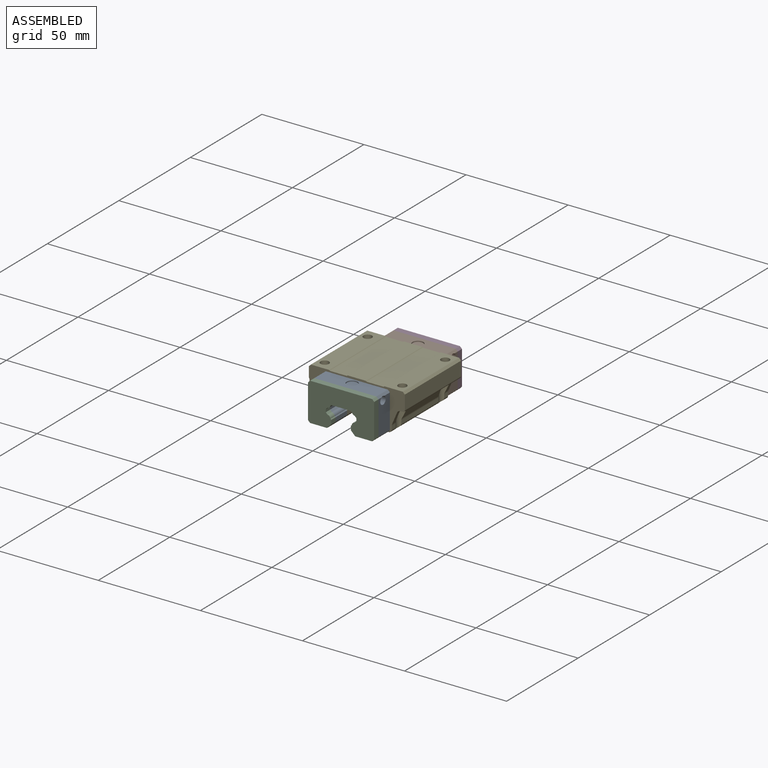
[diagram: assembled view]
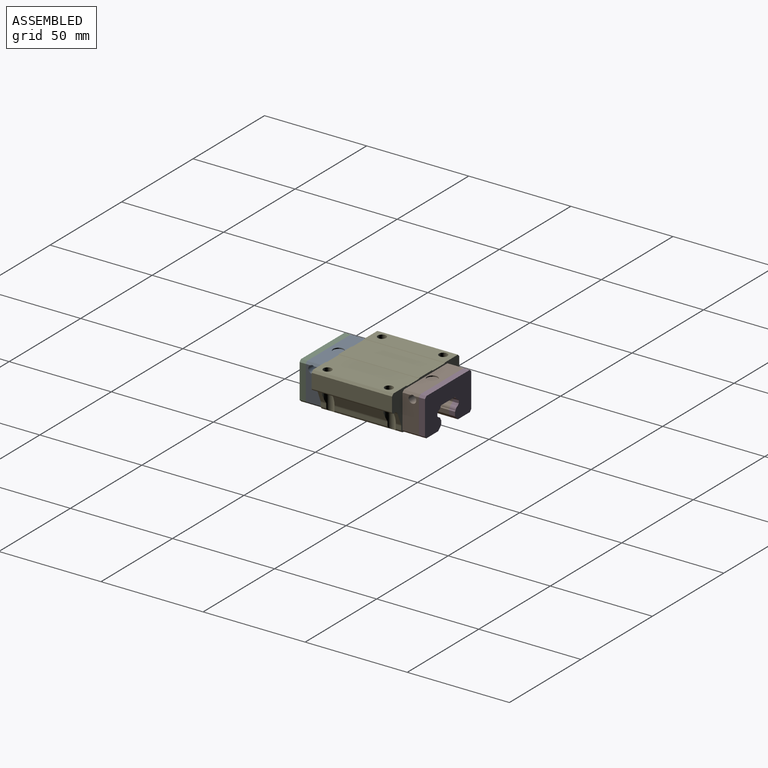
[diagram: assembled view, second angle]
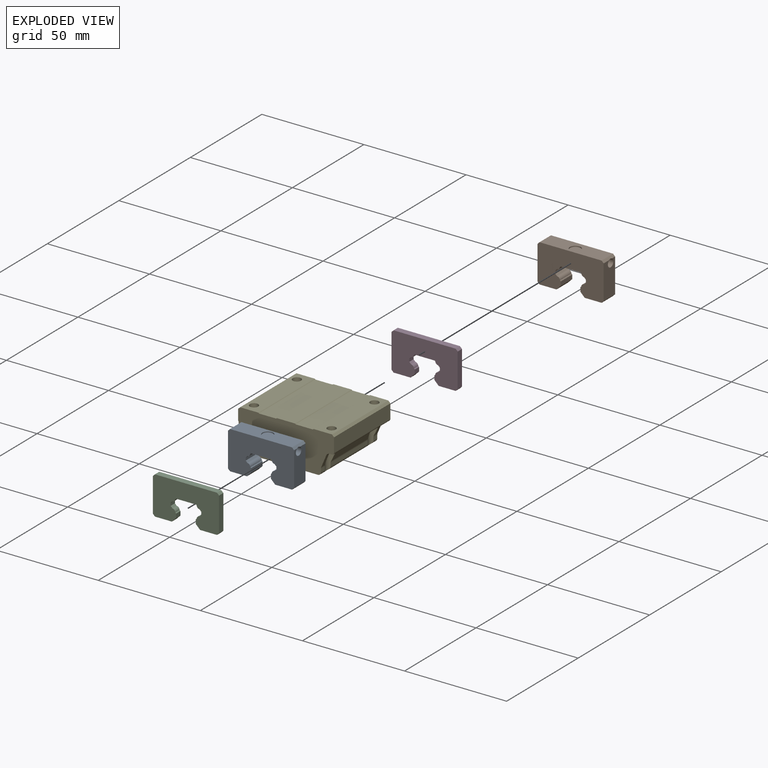
[diagram: exploded view]
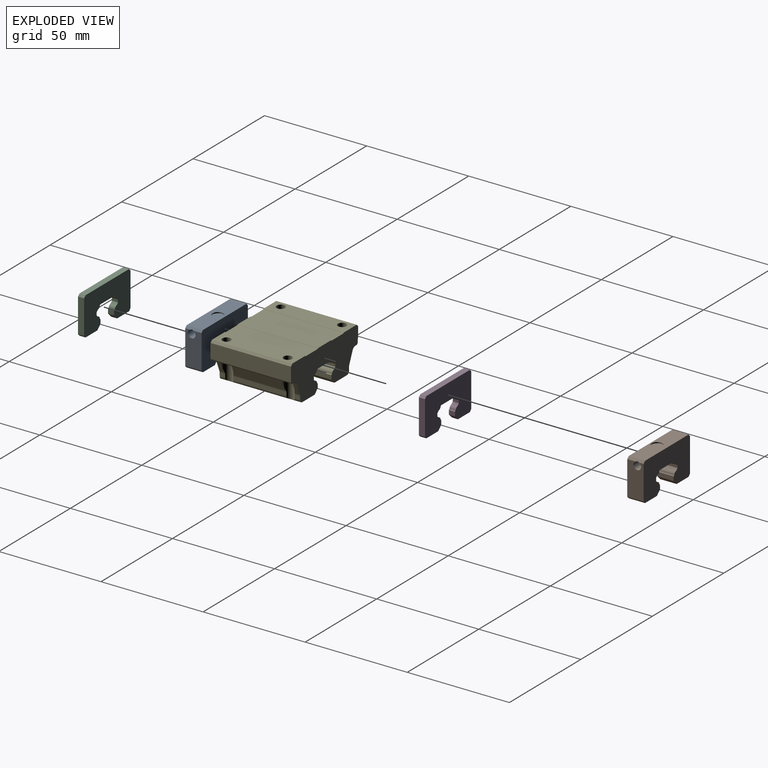
[diagram: exploded view, second angle]
ASSEMBLY  parts=5 mates=4
PART A: 36 faces, bbox 32.4x8x18.7 mm
  f0: cylinder r=1.63mm len=8mm, axis (0,1,0), area 17.7mm2, adj f1,f27,f28,f29
  f1: plane 8x0.85mm, normal (0.71,0,0.71), area 9.6mm2, adj f0,f2,f28,f29
  f2: plane 8x1.34mm, normal (1,0,0), area 10.7mm2, adj f1,f3,f28,f29
  f3: plane 8x0.87mm, normal (0.71,0,-0.71), area 9.8mm2, adj f2,f4,f28,f29
  f4: cylinder r=1.63mm len=8mm, axis (0,1,0), area 17.5mm2, adj f3,f5,f28,f29
  f5: plane 8x0.25mm, normal (0.71,0,-0.71), area 2.9mm2, adj f4,f6,f28,f29
  f6: plane 9.9x8mm, normal (0,0,-1), area 79.2mm2, adj f5,f7,f28,f29
  f7: plane 8x0.25mm, normal (-0.71,0,-0.71), area 2.9mm2, adj f6,f8,f28,f29
  f8: cylinder r=1.63mm len=8mm, axis (0,1,0), area 17.5mm2, adj f7,f9,f28,f29
  f9: plane 8x0.87mm, normal (-0.71,0,-0.71), area 9.8mm2, adj f8,f10,f28,f29
  f10: plane 8x1.34mm, normal (-1,0,0), area 10.7mm2, adj f9,f11,f28,f29
  f11: plane 8x0.85mm, normal (-0.71,0,0.71), area 9.6mm2, adj f10,f12,f28,f29
  f12: cylinder r=1.63mm len=8mm, axis (0,1,0), area 17.7mm2, adj f11,f13,f28,f29
  f13: plane 8x0.4mm, normal (-0.71,0,0.71), area 4.5mm2, adj f12,f14,f28,f29
  f14: plane 8x2.01mm, normal (-1,0,0), area 16.1mm2, adj f13,f15,f28,f29
  f15: plane 8x2.1mm, normal (-0.71,0,-0.71), area 23.8mm2, adj f14,f16,f28,f29
  f16: plane 8.3x8mm, normal (0,0,-1), area 66.4mm2, adj f15,f17,f28,f29
  f17: plane 8x1mm, normal (0.71,0,-0.71), area 11.3mm2, adj f16,f18,f28,f29
  f18: plane 16.7x8mm, normal (1,0,0), area 122.5mm2, adj f17,f19,f28,f29,f32
  f19: plane 8x1mm, normal (0.71,0,0.71), area 11mm2, adj f18,f20,f28,f29,f32
  f20: plane 30.4x8mm, normal (0,0,1), area 221.1mm2, adj f19,f21,f28,f29,f34
  f21: plane 8x1mm, normal (-0.71,0,0.71), area 11mm2, adj f20,f22,f28,f29,f30
  f22: plane 16.7x8mm, normal (-1,0,0), area 122.5mm2, adj f21,f23,f28,f29,f30
  f23: plane 8x1mm, normal (-0.71,0,-0.71), area 11.3mm2, adj f22,f24,f28,f29
  f24: plane 8.3x8mm, normal (0,0,-1), area 66.4mm2, adj f23,f25,f28,f29
  f25: plane 8x2.1mm, normal (0.71,0,-0.71), area 23.8mm2, adj f24,f26,f28,f29
  f26: plane 8x2.01mm, normal (1,0,0), area 16.1mm2, adj f25,f27,f28,f29
  f27: plane 8x0.4mm, normal (0.71,0,0.71), area 4.5mm2, adj f0,f26,f28,f29
  f28: plane 32.4x18.7mm, normal (0,-1,0), area 476.9mm2, adj f0,f1,f2,f3,f4,f5,f6,f7
  f29: plane 32.4x18.7mm, normal (0,1,0), area 476.9mm2, adj f0,f1,f2,f3,f4,f5,f6,f7
  f30: cylinder r=1.9mm len=10mm, axis (-1,0,0), area 119.1mm2, adj f21,f22,f31
  f31: plane 3.8x3.8mm, normal (-1,0,0), area 11.3mm2, adj f30
  f32: cylinder r=1.9mm len=10mm, axis (1,0,0), area 119.1mm2, adj f18,f19,f33
  f33: plane 3.8x3.8mm, normal (1,0,0), area 11.3mm2, adj f32
  f34: cylinder r=2.65mm len=5.3mm, axis (0,0,1), area 8.3mm2, adj f20,f35
  f35: plane 5.3x5.3mm, normal (0,0,1), area 22.1mm2, adj f34
PART B: 36 faces, bbox 32.4x8x18.7 mm
  f0: cylinder r=1.63mm len=8mm, axis (0,-1,0), area 17.7mm2, adj f1,f27,f28,f29
  f1: plane 8x0.85mm, normal (-0.71,0,0.71), area 9.6mm2, adj f0,f2,f28,f29
  f2: plane 8x1.34mm, normal (-1,0,0), area 10.7mm2, adj f1,f3,f28,f29
  f3: plane 8x0.87mm, normal (-0.71,0,-0.71), area 9.8mm2, adj f2,f4,f28,f29
  f4: cylinder r=1.63mm len=8mm, axis (0,-1,0), area 17.5mm2, adj f3,f5,f28,f29
  f5: plane 8x0.25mm, normal (-0.71,0,-0.71), area 2.9mm2, adj f4,f6,f28,f29
  f6: plane 9.9x8mm, normal (0,0,-1), area 79.2mm2, adj f5,f7,f28,f29
  f7: plane 8x0.25mm, normal (0.71,0,-0.71), area 2.9mm2, adj f6,f8,f28,f29
  f8: cylinder r=1.63mm len=8mm, axis (0,-1,0), area 17.5mm2, adj f7,f9,f28,f29
  f9: plane 8x0.87mm, normal (0.71,0,-0.71), area 9.8mm2, adj f8,f10,f28,f29
  f10: plane 8x1.34mm, normal (1,0,0), area 10.7mm2, adj f9,f11,f28,f29
  f11: plane 8x0.85mm, normal (0.71,0,0.71), area 9.6mm2, adj f10,f12,f28,f29
  f12: cylinder r=1.63mm len=8mm, axis (0,-1,0), area 17.7mm2, adj f11,f13,f28,f29
  f13: plane 8x0.4mm, normal (0.71,0,0.71), area 4.5mm2, adj f12,f14,f28,f29
  f14: plane 8x2.01mm, normal (1,0,0), area 16.1mm2, adj f13,f15,f28,f29
  f15: plane 8x2.1mm, normal (0.71,0,-0.71), area 23.8mm2, adj f14,f16,f28,f29
  f16: plane 8.3x8mm, normal (0,0,-1), area 66.4mm2, adj f15,f17,f28,f29
  f17: plane 8x1mm, normal (-0.71,0,-0.71), area 11.3mm2, adj f16,f18,f28,f29
  f18: plane 16.7x8mm, normal (-1,0,0), area 122.5mm2, adj f17,f19,f28,f29,f32
  f19: plane 8x1mm, normal (-0.71,0,0.71), area 11mm2, adj f18,f20,f28,f29,f32
  f20: plane 30.4x8mm, normal (0,0,1), area 221.1mm2, adj f19,f21,f28,f29,f34
  f21: plane 8x1mm, normal (0.71,0,0.71), area 11mm2, adj f20,f22,f28,f29,f30
  f22: plane 16.7x8mm, normal (1,0,0), area 122.5mm2, adj f21,f23,f28,f29,f30
  f23: plane 8x1mm, normal (0.71,0,-0.71), area 11.3mm2, adj f22,f24,f28,f29
  f24: plane 8.3x8mm, normal (0,0,-1), area 66.4mm2, adj f23,f25,f28,f29
  f25: plane 8x2.1mm, normal (-0.71,0,-0.71), area 23.8mm2, adj f24,f26,f28,f29
  f26: plane 8x2.01mm, normal (-1,0,0), area 16.1mm2, adj f25,f27,f28,f29
  f27: plane 8x0.4mm, normal (-0.71,0,0.71), area 4.5mm2, adj f0,f26,f28,f29
  f28: plane 32.4x18.7mm, normal (0,1,0), area 476.9mm2, adj f0,f1,f2,f3,f4,f5,f6,f7
  f29: plane 32.4x18.7mm, normal (0,-1,0), area 476.9mm2, adj f0,f1,f2,f3,f4,f5,f6,f7
  f30: cylinder r=1.9mm len=10mm, axis (1,0,0), area 119.1mm2, adj f21,f22,f31
  f31: plane 3.8x3.8mm, normal (1,0,0), area 11.3mm2, adj f30
  f32: cylinder r=1.9mm len=10mm, axis (-1,0,0), area 119.1mm2, adj f18,f19,f33
  f33: plane 3.8x3.8mm, normal (-1,0,0), area 11.3mm2, adj f32
  f34: cylinder r=2.65mm len=5.3mm, axis (0,0,1), area 8.3mm2, adj f20,f35
  f35: plane 5.3x5.3mm, normal (0,0,1), area 22.1mm2, adj f34
PART C: 30 faces, bbox 32.4x3x18.7 mm
  f0: cylinder r=1.63mm len=3mm, axis (0,1,0), area 6.6mm2, adj f1,f27,f28,f29
  f1: plane 3x0.85mm, normal (0.71,0,0.71), area 3.6mm2, adj f0,f2,f28,f29
  f2: plane 3x1.34mm, normal (1,0,0), area 4mm2, adj f1,f3,f28,f29
  f3: plane 3x0.87mm, normal (0.71,0,-0.71), area 3.7mm2, adj f2,f4,f28,f29
  f4: cylinder r=1.63mm len=3mm, axis (0,1,0), area 6.6mm2, adj f3,f5,f28,f29
  f5: plane 3x0.25mm, normal (0.71,0,-0.71), area 1.1mm2, adj f4,f6,f28,f29
  f6: plane 9.9x3mm, normal (0,0,-1), area 29.7mm2, adj f5,f7,f28,f29
  f7: plane 3x0.25mm, normal (-0.71,0,-0.71), area 1.1mm2, adj f6,f8,f28,f29
  f8: cylinder r=1.63mm len=3mm, axis (0,1,0), area 6.6mm2, adj f7,f9,f28,f29
  f9: plane 3x0.87mm, normal (-0.71,0,-0.71), area 3.7mm2, adj f8,f10,f28,f29
  f10: plane 3x1.34mm, normal (-1,0,0), area 4mm2, adj f9,f11,f28,f29
  f11: plane 3x0.85mm, normal (-0.71,0,0.71), area 3.6mm2, adj f10,f12,f28,f29
  f12: cylinder r=1.63mm len=3mm, axis (0,1,0), area 6.6mm2, adj f11,f13,f28,f29
  f13: plane 3x0.4mm, normal (-0.71,0,0.71), area 1.7mm2, adj f12,f14,f28,f29
  f14: plane 3x2.01mm, normal (-1,0,0), area 6mm2, adj f13,f15,f28,f29
  f15: plane 3x2.1mm, normal (-0.71,0,-0.71), area 8.9mm2, adj f14,f16,f28,f29
  f16: plane 8.3x3mm, normal (0,0,-1), area 24.9mm2, adj f15,f17,f28,f29
  f17: plane 3x1mm, normal (0.71,0,-0.71), area 4.2mm2, adj f16,f18,f28,f29
  f18: plane 16.7x3mm, normal (1,0,0), area 50.1mm2, adj f17,f19,f28,f29
  f19: plane 3x1mm, normal (0.71,0,0.71), area 4.2mm2, adj f18,f20,f28,f29
  f20: plane 30.4x3mm, normal (0,0,1), area 91.2mm2, adj f19,f21,f28,f29
  f21: plane 3x1mm, normal (-0.71,0,0.71), area 4.2mm2, adj f20,f22,f28,f29
  f22: plane 16.7x3mm, normal (-1,0,0), area 50.1mm2, adj f21,f23,f28,f29
  f23: plane 3x1mm, normal (-0.71,0,-0.71), area 4.2mm2, adj f22,f24,f28,f29
  f24: plane 8.3x3mm, normal (0,0,-1), area 24.9mm2, adj f23,f25,f28,f29
  f25: plane 3x2.1mm, normal (0.71,0,-0.71), area 8.9mm2, adj f24,f26,f28,f29
  f26: plane 3x2.01mm, normal (1,0,0), area 6mm2, adj f25,f27,f28,f29
  f27: plane 3x0.4mm, normal (0.71,0,0.71), area 1.7mm2, adj f0,f26,f28,f29
  f28: plane 32.4x18.7mm, normal (0,-1,0), area 476.9mm2, adj f0,f1,f2,f3,f4,f5,f6,f7
  f29: plane 32.4x18.7mm, normal (0,1,0), area 476.9mm2, adj f0,f1,f2,f3,f4,f5,f6,f7
PART D: 30 faces, bbox 32.4x3x18.7 mm
  f0: cylinder r=1.63mm len=3mm, axis (0,1,0), area 6.6mm2, adj f1,f27,f28,f29
  f1: plane 3x0.85mm, normal (0.71,0,0.71), area 3.6mm2, adj f0,f2,f28,f29
  f2: plane 3x1.34mm, normal (1,0,0), area 4mm2, adj f1,f3,f28,f29
  f3: plane 3x0.87mm, normal (0.71,0,-0.71), area 3.7mm2, adj f2,f4,f28,f29
  f4: cylinder r=1.63mm len=3mm, axis (0,1,0), area 6.6mm2, adj f3,f5,f28,f29
  f5: plane 3x0.25mm, normal (0.71,0,-0.71), area 1.1mm2, adj f4,f6,f28,f29
  f6: plane 9.9x3mm, normal (0,0,-1), area 29.7mm2, adj f5,f7,f28,f29
  f7: plane 3x0.25mm, normal (-0.71,0,-0.71), area 1.1mm2, adj f6,f8,f28,f29
  f8: cylinder r=1.63mm len=3mm, axis (0,1,0), area 6.6mm2, adj f7,f9,f28,f29
  f9: plane 3x0.87mm, normal (-0.71,0,-0.71), area 3.7mm2, adj f8,f10,f28,f29
  f10: plane 3x1.34mm, normal (-1,0,0), area 4mm2, adj f9,f11,f28,f29
  f11: plane 3x0.85mm, normal (-0.71,0,0.71), area 3.6mm2, adj f10,f12,f28,f29
  f12: cylinder r=1.63mm len=3mm, axis (0,1,0), area 6.6mm2, adj f11,f13,f28,f29
  f13: plane 3x0.4mm, normal (-0.71,0,0.71), area 1.7mm2, adj f12,f14,f28,f29
  f14: plane 3x2.01mm, normal (-1,0,0), area 6mm2, adj f13,f15,f28,f29
  f15: plane 3x2.1mm, normal (-0.71,0,-0.71), area 8.9mm2, adj f14,f16,f28,f29
  f16: plane 8.3x3mm, normal (0,0,-1), area 24.9mm2, adj f15,f17,f28,f29
  f17: plane 3x1mm, normal (0.71,0,-0.71), area 4.2mm2, adj f16,f18,f28,f29
  f18: plane 16.7x3mm, normal (1,0,0), area 50.1mm2, adj f17,f19,f28,f29
  f19: plane 3x1mm, normal (0.71,0,0.71), area 4.2mm2, adj f18,f20,f28,f29
  f20: plane 30.4x3mm, normal (0,0,1), area 91.2mm2, adj f19,f21,f28,f29
  f21: plane 3x1mm, normal (-0.71,0,0.71), area 4.2mm2, adj f20,f22,f28,f29
  f22: plane 16.7x3mm, normal (-1,0,0), area 50.1mm2, adj f21,f23,f28,f29
  f23: plane 3x1mm, normal (-0.71,0,-0.71), area 4.2mm2, adj f22,f24,f28,f29
  f24: plane 8.3x3mm, normal (0,0,-1), area 24.9mm2, adj f23,f25,f28,f29
  f25: plane 3x2.1mm, normal (0.71,0,-0.71), area 8.9mm2, adj f24,f26,f28,f29
  f26: plane 3x2.01mm, normal (1,0,0), area 6mm2, adj f25,f27,f28,f29
  f27: plane 3x0.4mm, normal (0.71,0,0.71), area 1.7mm2, adj f0,f26,f28,f29
  f28: plane 32.4x18.7mm, normal (0,-1,0), area 476.9mm2, adj f0,f1,f2,f3,f4,f5,f6,f7
  f29: plane 32.4x18.7mm, normal (0,1,0), area 476.9mm2, adj f0,f1,f2,f3,f4,f5,f6,f7
PART E: 82 faces, bbox 47x39.4x19.7 mm
  f0: cylinder r=1.5mm len=39.4mm, axis (0,1,0), area 82.2mm2, adj f1,f2,f9,f71,f72,f73,f76,f77
  f1: plane 2.71x1.62mm, normal (1,0,0), area 4.4mm2, adj f0,f3,f72,f77
  f2: plane 26.03x1.62mm, normal (1,0,0), area 42.3mm2, adj f0,f4,f76,f77
  f3: cylinder r=2mm len=2.71mm, axis (0,1,0), area 1.9mm2, adj f1,f5,f72,f77
  f4: cylinder r=2mm len=26.02mm, axis (0,1,0), area 18.1mm2, adj f2,f6,f76,f77
  f5: plane 5.68x2.6mm, normal (0.92,0,-0.39), area 13mm2, adj f3,f8,f72,f77
  f6: plane 25.81x5.68mm, normal (0.92,0,-0.39), area 152.9mm2, adj f4,f7,f76,f77
  f7: cylinder r=2mm len=27.68mm, axis (0,1,0), area 62.3mm2, adj f6,f26,f76,f77
  f8: cylinder r=2mm len=3.54mm, axis (0,1,0), area 6mm2, adj f5,f26,f72,f77
  f9: plane 2.71x1.62mm, normal (1,0,0), area 4.4mm2, adj f0,f10,f73,f76
  f10: cylinder r=2mm len=2.71mm, axis (0,1,0), area 1.9mm2, adj f9,f11,f73,f76
  f11: plane 5.68x2.6mm, normal (0.92,0,-0.39), area 13mm2, adj f10,f12,f73,f76
  f12: cylinder r=2mm len=3.54mm, axis (0,1,0), area 6mm2, adj f11,f26,f73,f76
  f13: cylinder r=2mm len=3.54mm, axis (0,1,0), area 6mm2, adj f15,f49,f73,f75
  f14: cylinder r=2mm len=27.68mm, axis (0,1,0), area 62.3mm2, adj f16,f49,f74,f75
  f15: plane 5.68x2.6mm, normal (-0.92,0,-0.39), area 13mm2, adj f13,f18,f73,f75
  f16: plane 25.81x5.68mm, normal (-0.92,0,-0.39), area 152.9mm2, adj f14,f17,f74,f75
  f17: cylinder r=2mm len=26.02mm, axis (0,1,0), area 18.1mm2, adj f16,f20,f74,f75
  f18: cylinder r=2mm len=2.71mm, axis (0,1,0), area 1.9mm2, adj f15,f19,f73,f75
  f19: plane 2.71x1.62mm, normal (-1,0,0), area 4.4mm2, adj f18,f21,f73,f75
  f20: plane 26.03x1.62mm, normal (-1,0,0), area 42.3mm2, adj f17,f21,f74,f75
  f21: cylinder r=1.5mm len=39.4mm, axis (0,1,0), area 82.2mm2, adj f19,f20,f25,f50,f72,f73,f74,f75
  f22: cylinder r=2mm len=3.54mm, axis (0,1,0), area 6mm2, adj f23,f49,f72,f74
  f23: plane 5.68x2.6mm, normal (-0.92,0,-0.39), area 13mm2, adj f22,f24,f72,f74
  f24: cylinder r=2mm len=2.71mm, axis (0,1,0), area 1.9mm2, adj f23,f25,f72,f74
  f25: plane 2.71x1.62mm, normal (-1,0,0), area 4.4mm2, adj f21,f24,f72,f74
  f26: plane 39.4x6.25mm, normal (0,0,-1), area 59.7mm2, adj f7,f8,f12,f27,f72,f73,f76,f77
  f27: cylinder r=1mm len=39.4mm, axis (0,1,0), area 61.9mm2, adj f26,f28,f72,f73
  f28: plane 39.4x6.89mm, normal (1,0,0), area 271.6mm2, adj f27,f29,f72,f73
  f29: plane 39.4x1.01mm, normal (0.71,0,0.7), area 55.9mm2, adj f28,f30,f72,f73
  f30: plane 39.4x9mm, normal (0,0,1), area 327.9mm2, adj f29,f31,f72,f73,f79,f81
  f31: plane 39.4x0.15mm, normal (-0.71,0,0.71), area 8.6mm2, adj f30,f32,f72,f73
  f32: cylinder r=0.5mm len=39.4mm, axis (0,1,0), area 15.5mm2, adj f31,f33,f72,f73
  f33: plane 39.4x7.99mm, normal (0,0,1), area 314.6mm2, adj f32,f34,f72,f73
  f34: cylinder r=0.5mm len=39.4mm, axis (0,1,0), area 15.5mm2, adj f33,f35,f72,f73
  f35: plane 39.4x0.15mm, normal (0.71,0,0.71), area 8.6mm2, adj f34,f36,f72,f73
  f36: plane 39.4x9mm, normal (0,0,1), area 354.6mm2, adj f35,f37,f72,f73
  f37: plane 39.4x0.15mm, normal (-0.71,0,0.71), area 8.6mm2, adj f36,f38,f72,f73
  f38: cylinder r=0.5mm len=39.4mm, axis (0,1,0), area 15.5mm2, adj f37,f39,f72,f73
  f39: plane 39.4x7.99mm, normal (0,0,1), area 314.6mm2, adj f38,f40,f72,f73
  f40: cylinder r=0.49mm len=39.4mm, axis (0,1,0), area 15.4mm2, adj f39,f41,f72,f73
  f41: plane 39.4x0.16mm, normal (0.71,0,0.71), area 8.7mm2, adj f40,f42,f72,f73
  f42: plane 39.4x9mm, normal (0,0,1), area 327.9mm2, adj f41,f43,f72,f73,f78,f80
  f43: plane 39.4x1.01mm, normal (-0.71,0,0.7), area 55.9mm2, adj f42,f44,f72,f73
  f44: plane 39.4x4.99mm, normal (-1,0,0), area 196.7mm2, adj f43,f45,f72,f73
  f45: plane 39.4x0.25mm, normal (-0.86,0,-0.52), area 11.7mm2, adj f44,f46,f72,f73
  f46: cylinder r=0.5mm len=39.4mm, axis (0,1,0), area 15.5mm2, adj f45,f47,f72,f73
  f47: plane 39.4x1.29mm, normal (-1,0,0), area 50.9mm2, adj f46,f48,f72,f73
  f48: cylinder r=1mm len=39.4mm, axis (0,1,0), area 61.9mm2, adj f47,f49,f72,f73
  f49: plane 39.4x5.95mm, normal (0,0,-1), area 47.9mm2, adj f13,f14,f22,f48,f72,f73,f74,f75
  f50: plane 39.4x8.7mm, normal (0,0,-1), area 342.7mm2, adj f21,f51,f72,f73
  f51: plane 39.4x2.1mm, normal (0.71,0,-0.71), area 117mm2, adj f50,f52,f72,f73
  f52: plane 39.4x2.01mm, normal (1,0,0), area 79.2mm2, adj f51,f53,f72,f73
  f53: plane 39.4x0.4mm, normal (0.71,0,0.71), area 22.3mm2, adj f52,f54,f72,f73
  f54: cylinder r=1.63mm len=39.4mm, axis (0,1,0), area 87.2mm2, adj f53,f55,f72,f73
  f55: plane 39.4x0.85mm, normal (0.71,0,0.71), area 47.5mm2, adj f54,f56,f72,f73
  f56: plane 39.4x1.34mm, normal (1,0,0), area 52.8mm2, adj f55,f57,f72,f73
  f57: plane 39.4x0.87mm, normal (0.71,0,-0.71), area 48.2mm2, adj f56,f58,f72,f73
  f58: cylinder r=1.63mm len=39.4mm, axis (0,1,0), area 86.1mm2, adj f57,f59,f72,f73
  f59: plane 39.4x0.25mm, normal (0.71,0,-0.71), area 14.1mm2, adj f58,f60,f72,f73
  f60: plane 39.4x9.9mm, normal (0,0,-1), area 390mm2, adj f59,f61,f72,f73
  f61: plane 39.4x0.25mm, normal (-0.71,0,-0.71), area 14.1mm2, adj f60,f62,f72,f73
  f62: cylinder r=1.63mm len=39.4mm, axis (0,1,0), area 86.1mm2, adj f61,f63,f72,f73
  f63: plane 39.4x0.87mm, normal (-0.71,0,-0.71), area 48.2mm2, adj f62,f64,f72,f73
  f64: plane 39.4x1.34mm, normal (-1,0,0), area 52.8mm2, adj f63,f65,f72,f73
  f65: plane 39.4x0.85mm, normal (-0.71,0,0.71), area 47.5mm2, adj f64,f66,f72,f73
  f66: cylinder r=1.63mm len=39.4mm, axis (0,1,0), area 87.2mm2, adj f65,f67,f72,f73
  f67: plane 39.4x0.4mm, normal (-0.71,0,0.71), area 22.3mm2, adj f66,f68,f72,f73
  f68: plane 39.4x2.01mm, normal (-1,0,0), area 79.2mm2, adj f67,f69,f72,f73
  f69: plane 39.4x2.1mm, normal (-0.71,0,-0.71), area 117mm2, adj f68,f70,f72,f73
  f70: plane 39.4x8.3mm, normal (0,0,-1), area 327mm2, adj f69,f71,f72,f73
  f71: plane 39.4x0.4mm, normal (0,0,-1), area 15.7mm2, adj f0,f70,f72,f73
  f72: plane 47x19.7mm, normal (0,-1,0), area 675.3mm2, adj f0,f1,f3,f5,f8,f21,f22,f23
  f73: plane 47x19.7mm, normal (0,1,0), area 675.3mm2, adj f0,f9,f10,f11,f12,f13,f15,f18
  f74: cylinder r=2.75mm len=10.65mm, axis (0,0,1), area 71.9mm2, adj f14,f16,f17,f20,f21,f22,f23,f24
  f75: cylinder r=2.75mm len=10.65mm, axis (0,0,1), area 71.9mm2, adj f13,f14,f15,f16,f17,f18,f19,f20
  f76: cylinder r=2.75mm len=10.65mm, axis (0,0,1), area 71.9mm2, adj f0,f2,f4,f6,f7,f9,f10,f11
  f77: cylinder r=2.75mm len=10.65mm, axis (0,0,1), area 71.9mm2, adj f0,f1,f2,f3,f4,f5,f6,f7
  f78: cylinder r=2.06mm len=8.9mm, axis (0,0,-1), area 115.2mm2, adj f42,f49
  f79: cylinder r=2.06mm len=8.9mm, axis (0,0,-1), area 115.2mm2, adj f26,f30
  f80: cylinder r=2.06mm len=8.9mm, axis (0,0,-1), area 115.2mm2, adj f42,f49
  f81: cylinder r=2.06mm len=8.9mm, axis (0,0,-1), area 115.2mm2, adj f26,f30
PLACE A t=(0.6,19.4,-17.51)mm
PLACE B t=(0.6,19.4,-17.51)mm
PLACE C t=(0.6,19.4,-17.51)mm
PLACE D t=(0.6,19.4,-17.51)mm
PLACE E t=(0.6,19.4,-17.51)mm
MATE fastened E.f72 <-> A.f29  axis (0,-1,0) through (0.6,-20,-6.81)mm
MATE fastened A.f28 <-> C.f29  axis (0,-1,0) through (0.6,-28,-6.81)mm
MATE fastened E.f73 <-> B.f29  axis (0,1,0) through (0.6,19.4,-6.81)mm
MATE fastened B.f28 <-> D.f28  axis (0,1,0) through (0.6,27.4,-6.81)mm
